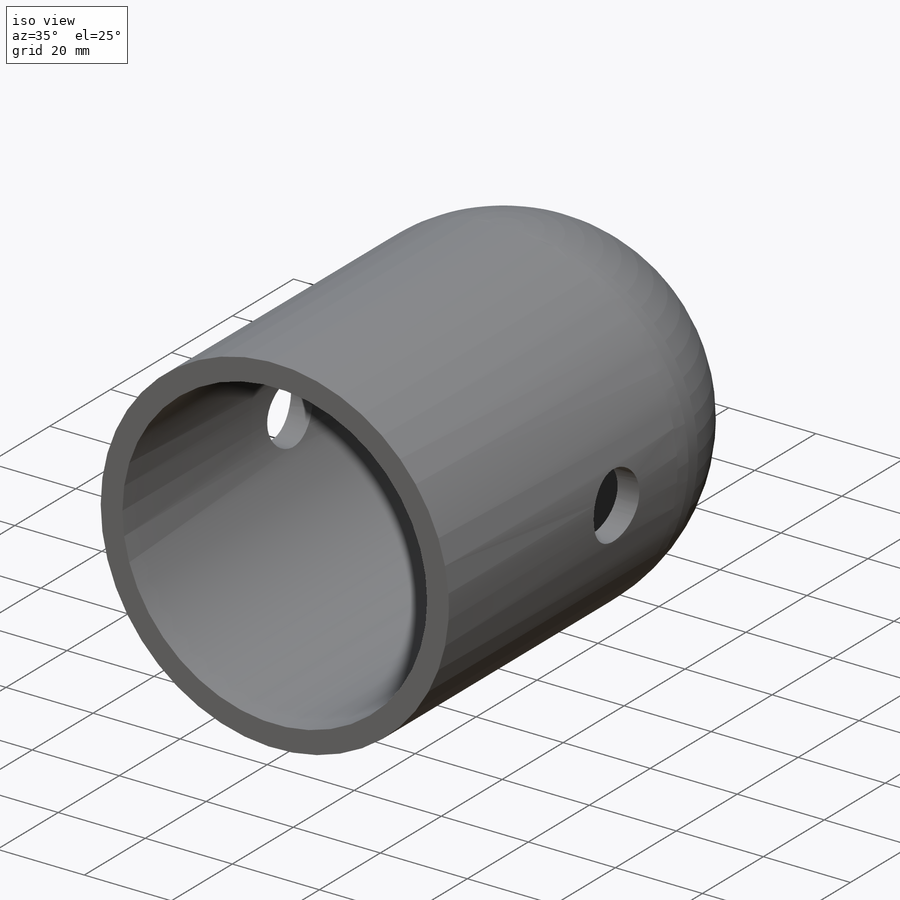
[diagram: iso view]
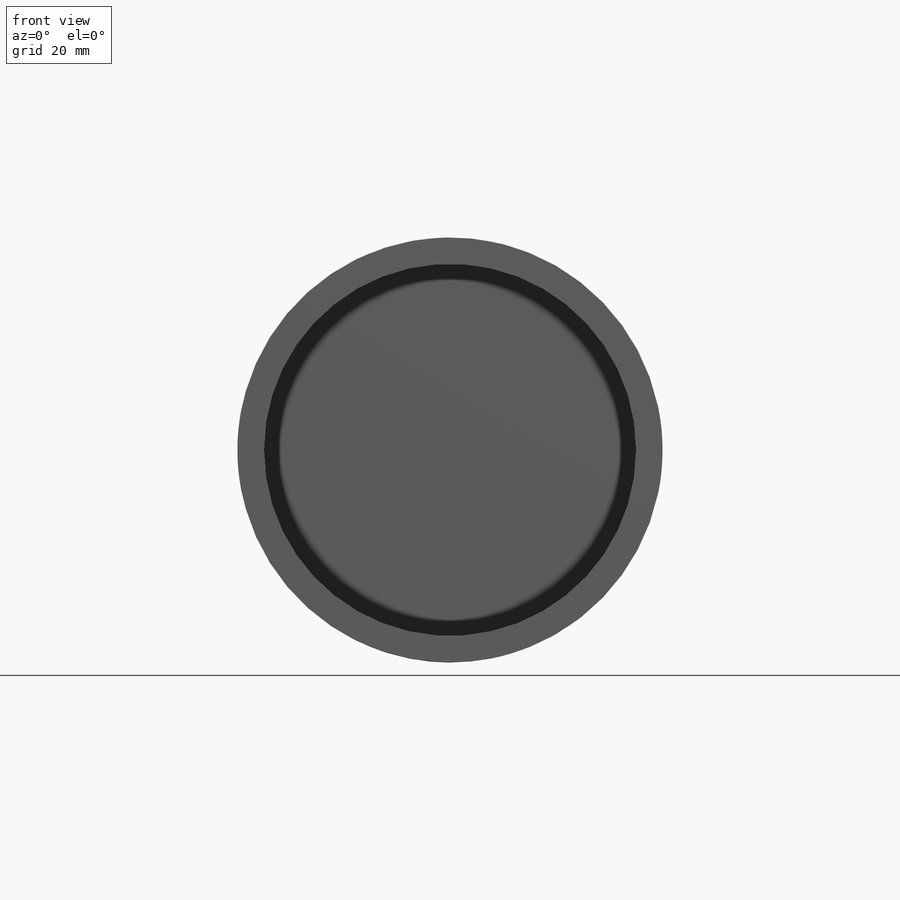
[diagram: front view]
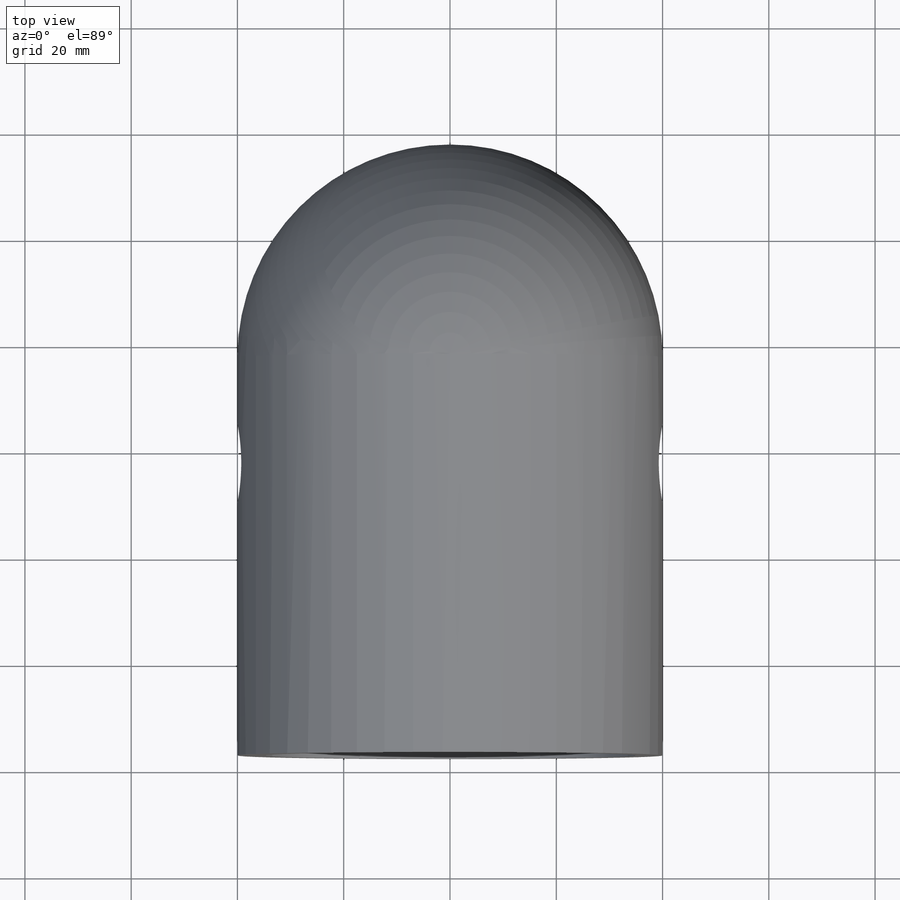
[diagram: top view]
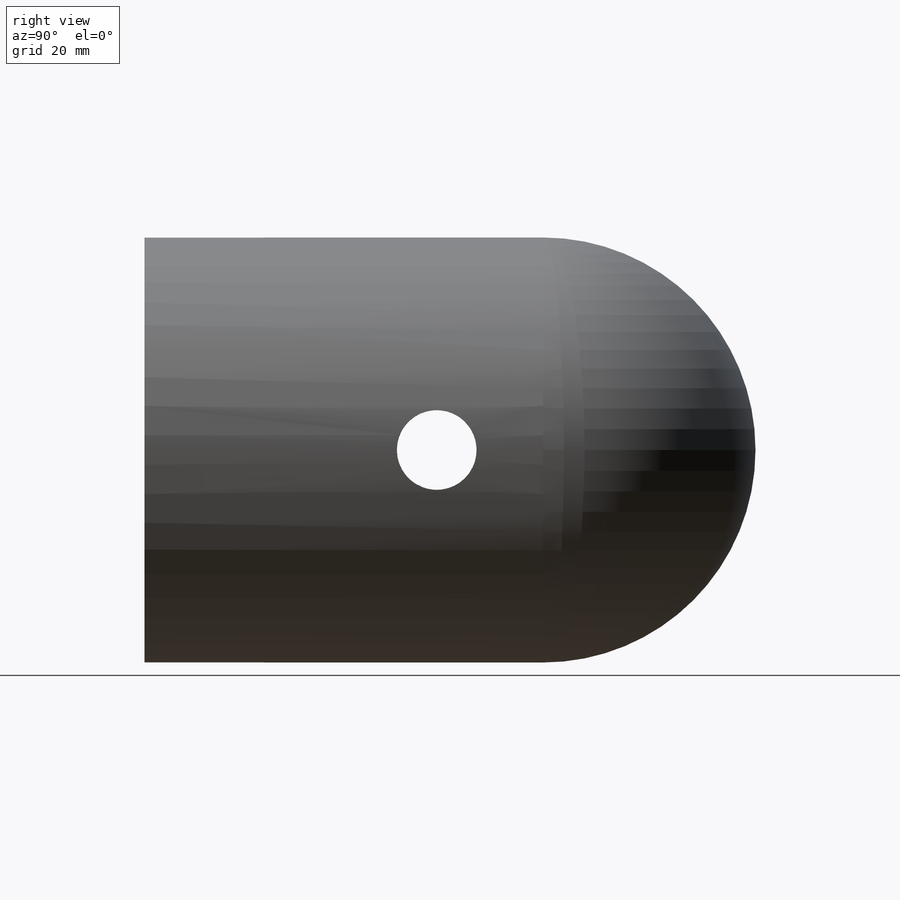
[diagram: right view]
SOLIDWORKS PART (.sldprt)
format: sldprt  version: not decoded by parser v0  size: 225,792 bytes
history: native  units: mm
features: sketch x4, cut_extrude x2, material x1, extrude x1, revolve x1 (+12 scaffold rows collapsed)
feature tree (21):
  scaffold x12  (default folders/planes/origin — collapsed)
  material  "Material <not specified>"
  sketch  "Sketch1"  dims[D1=80.0mm]
  extrude  "Boss-Extrude1"  Depth=75mm
  sketch  "Sketch3"  dims[c1.D1=15.0mm c1.D2=25.0mm c1.D3=40.0mm c2.D2=20.0mm]
  cut_extrude  "Cut-Extrude2"  [1 undecoded]
  sketch  "Sketch7"  dims[D1=80.0mm]
  revolve  "Revolve1"  Angle=180deg
  sketch  "Sketch2"  dims[D1=70.0mm]
  cut_extrude  "Cut-Extrude3"  Depth=90mm
decode coverage: 7 of 8 modeling features carry decoded parameters
note: 1 parameter value undecoded
note: suppression state not decoded; provenance and decode notes live in map.json
